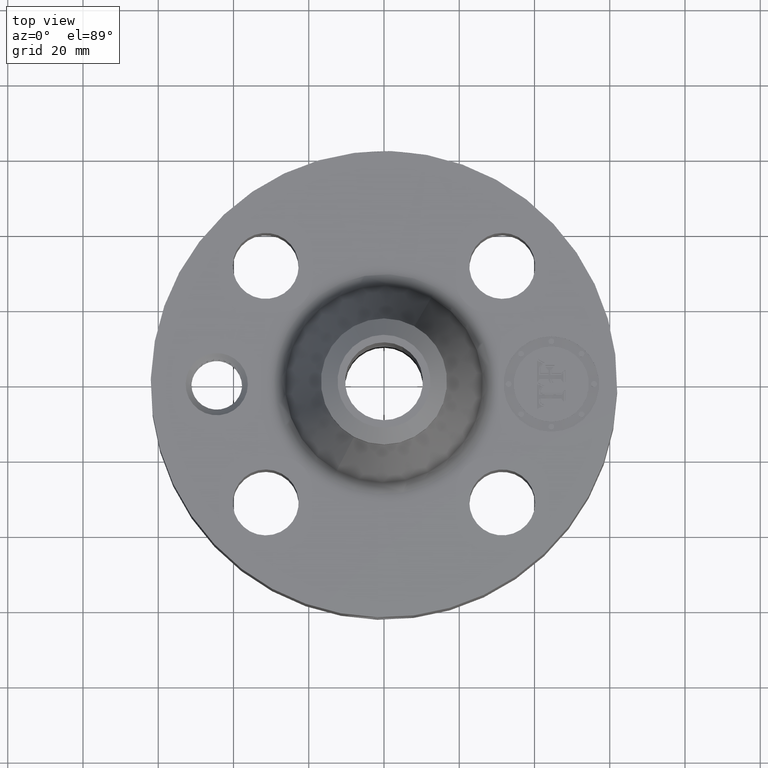
[diagram: clean part render]
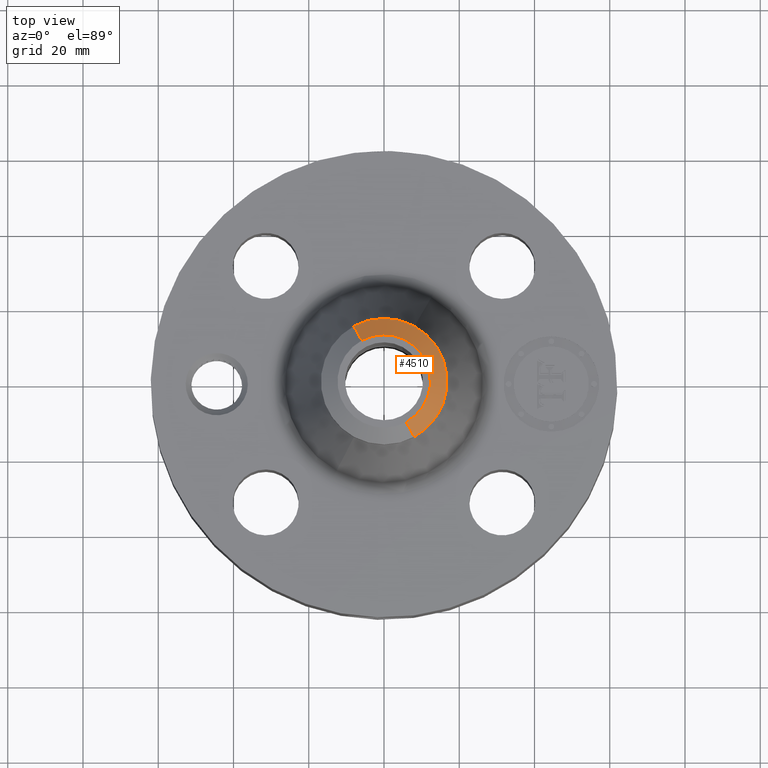
[diagram: same view with one face highlighted and labeled with its STEP entity id]
A machine part, top view. The second image highlights one B-rep face of the part: STEP entity #4510.
In plain terms, the highlighted conical surface has half-angle 52.5 deg.
Its self-contained STEP definition (entity closure, byte-faithful):
#3221=AXIS2_PLACEMENT_3D('Circle Axis2P3D',#3219,#3220,$) ;
#3248=AXIS2_PLACEMENT_3D('Circle Axis2P3D',#3246,#3247,$) ;
#4080=AXIS2_PLACEMENT_3D('Circle Axis2P3D',#4078,#4079,$) ;
#4491=AXIS2_PLACEMENT_3D('Cone Axis2P3D',#4488,#4489,#4490) ;
#3216=CARTESIAN_POINT('Vertex',(0.31642085548,0.57920449085,3.17666938342)) ;
#3219=CARTESIAN_POINT('Axis2P3D Location',(0.,0.,3.17666938342)) ;
#3223=CARTESIAN_POINT('Vertex',(0.31642085548,-0.57920449085,3.17666938342)) ;
#3243=CARTESIAN_POINT('Vertex',(-0.31642085548,0.57920449085,3.17666938342)) ;
#3246=CARTESIAN_POINT('Axis2P3D Location',(0.,0.,3.17666938342)) ;
#4078=CARTESIAN_POINT('Axis2P3D Location',(0.,0.,3.31000000001)) ;
#4082=CARTESIAN_POINT('Vertex',(0.233115949392,-0.426715883097,3.31000000001)) ;
#4084=CARTESIAN_POINT('Vertex',(-0.233115949392,0.426715883097,3.31000000001)) ;
#4488=CARTESIAN_POINT('Axis2P3D Location',(0.,0.,3.31000000001)) ;
#4493=CARTESIAN_POINT('Line Origine',(-0.274768402436,0.502960186973,3.24333469172)) ;
#4498=CARTESIAN_POINT('Line Origine',(0.274768402436,-0.502960186973,3.24333469172)) ;
#3220=DIRECTION('Axis2P3D Direction',(0.,0.,-0.0393700787402)) ;
#3247=DIRECTION('Axis2P3D Direction',(0.,0.,-0.0393700787402)) ;
#4079=DIRECTION('Axis2P3D Direction',(0.,0.,-0.0393700787402)) ;
#4489=DIRECTION('Axis2P3D Direction',(-0.,-0.,-0.0393700787402)) ;
#4490=DIRECTION('Axis2P3D XDirection',(0.0188750212049,-0.0345504945626,0.)) ;
#4494=DIRECTION('Vector Direction',(-0.014974561121,0.02741075027,-0.023966985394)) ;
#4499=DIRECTION('Vector Direction',(0.014974561121,-0.02741075027,-0.023966985394)) ;
#4495=VECTOR('Line Direction',#4494,0.0393700787402) ;
#4500=VECTOR('Line Direction',#4499,0.0393700787402) ;
#4504=ORIENTED_EDGE('',*,*,#4497,.F.) ;
#4505=ORIENTED_EDGE('',*,*,#4086,.F.) ;
#4506=ORIENTED_EDGE('',*,*,#4502,.T.) ;
#4507=ORIENTED_EDGE('',*,*,#3225,.T.) ;
#4508=ORIENTED_EDGE('',*,*,#3250,.F.) ;
#4510=ADVANCED_FACE('PartBody',(#4509),#4492,.T.) ;
#3222=CIRCLE('generated circle',#3221,0.660000000003) ;
#3249=CIRCLE('generated circle',#3248,0.660000000003) ;
#4081=CIRCLE('generated circle',#4080,0.486240157482) ;
#4492=CONICAL_SURFACE('Cone',#4491,0.486240157482,0.916297857297) ;
#3225=EDGE_CURVE('',#3224,#3217,#3222,.F.) ;
#3250=EDGE_CURVE('',#3244,#3217,#3249,.T.) ;
#4086=EDGE_CURVE('',#4083,#4085,#4081,.F.) ;
#4497=EDGE_CURVE('',#4085,#3244,#4496,.T.) ;
#4502=EDGE_CURVE('',#4083,#3224,#4501,.T.) ;
#4503=EDGE_LOOP('',(#4504,#4505,#4506,#4507,#4508)) ;
#4509=FACE_OUTER_BOUND('',#4503,.T.) ;
#4496=LINE('Line',#4493,#4495) ;
#4501=LINE('Line',#4498,#4500) ;
#3217=VERTEX_POINT('',#3216) ;
#3224=VERTEX_POINT('',#3223) ;
#3244=VERTEX_POINT('',#3243) ;
#4083=VERTEX_POINT('',#4082) ;
#4085=VERTEX_POINT('',#4084) ;